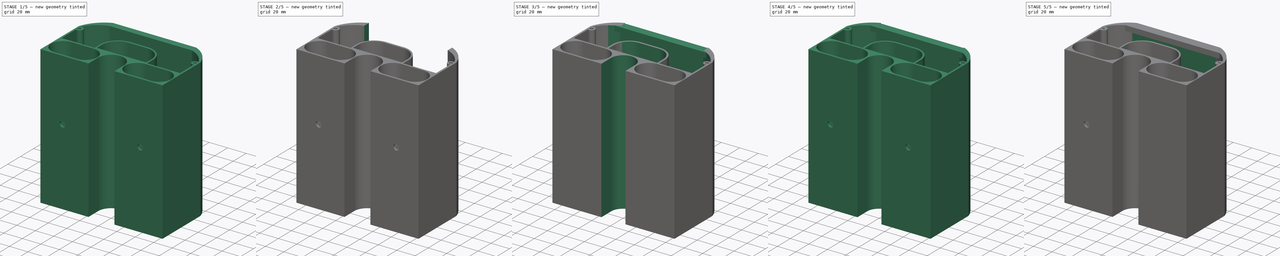
[diagram: build sequence overview — one tinted view per stage of 5, left to right]
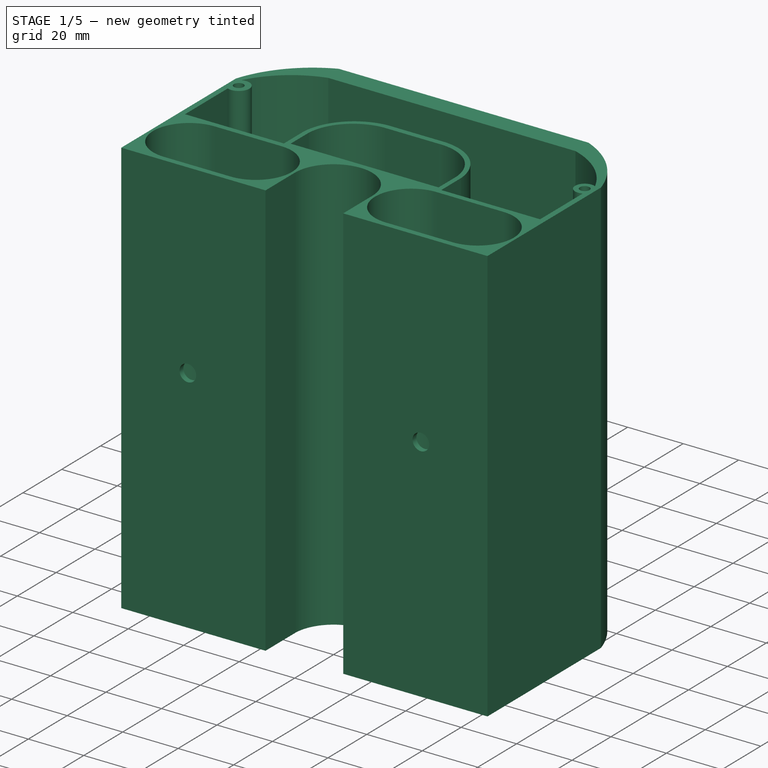
[diagram: stage 1 of 5 — iso view after this stage's code; geometry added in this stage tinted green]
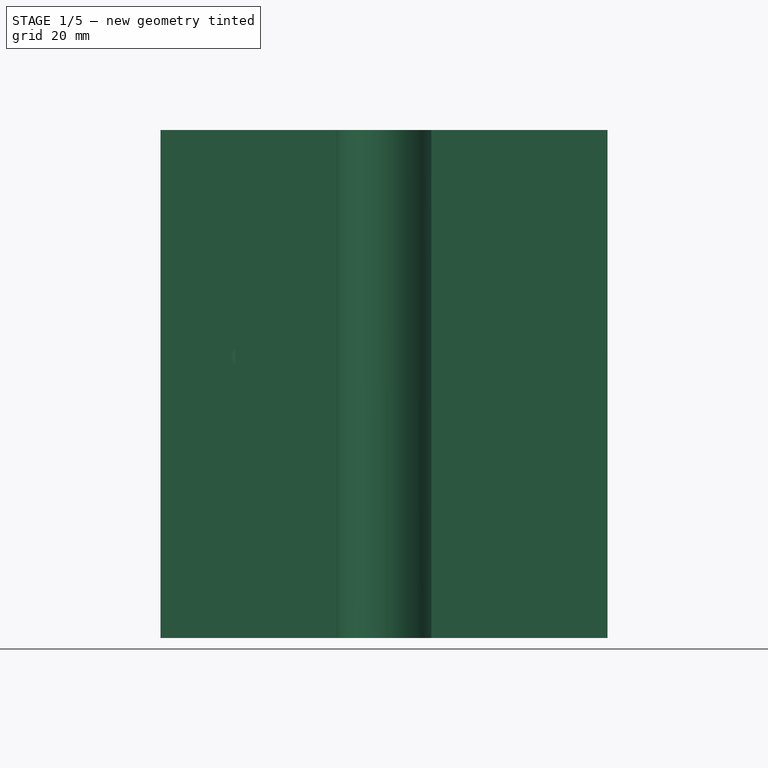
[diagram: stage 1 of 5 — front view after this stage's code; geometry added in this stage tinted green]
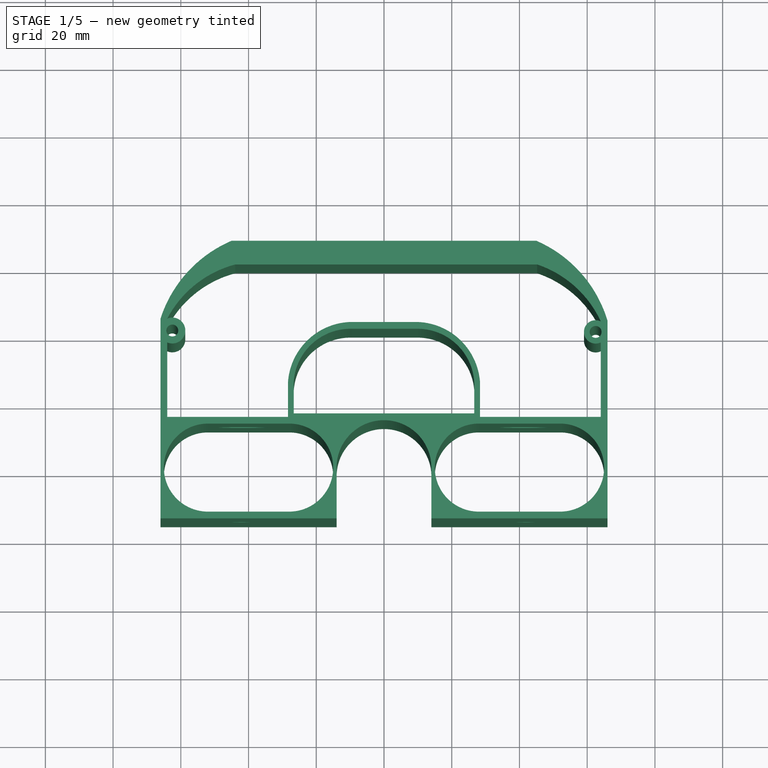
[diagram: stage 1 of 5 — top view after this stage's code; geometry added in this stage tinted green]
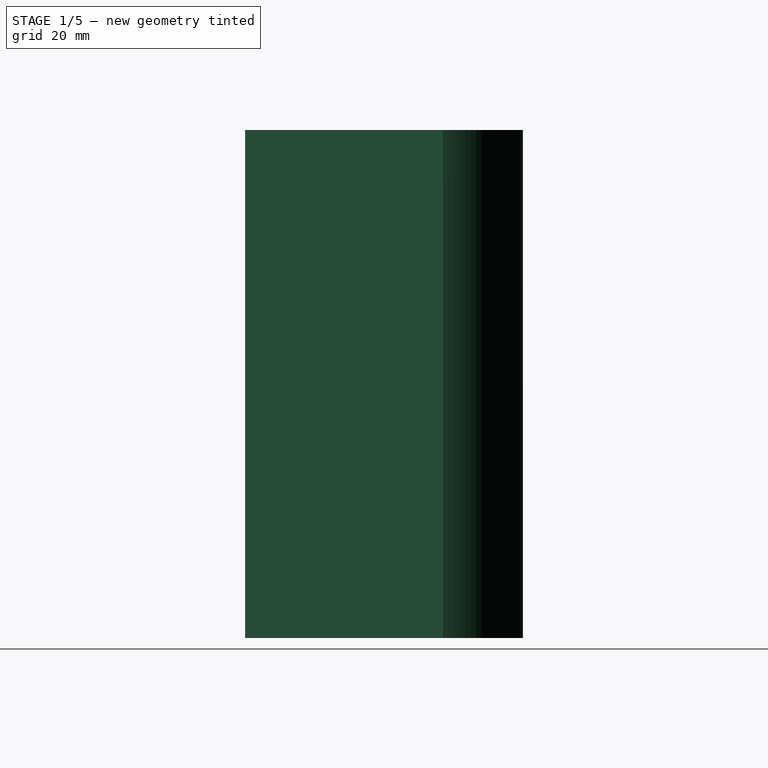
[diagram: stage 1 of 5 — right view after this stage's code; geometry added in this stage tinted green]
FCSTD DOCUMENT  (FreeCAD 0.15R4671 (Git))
Label: batteryHolder2
License: All rights reserved
LicenseURL: http://en.wikipedia.org/wiki/All_rights_reserved
objects: Sketcher::SketchObject×17, PartDesign::Pocket×10, PartDesign::Pad×7, PartDesign::Mirrored×6
note: 57 computed .brp shape members not serialized (recipe doc carries the construction recipe); baked Part::Feature solids carry a one-line shape summary decoded from their .brp

FEATURE [Sketcher::SketchObject] Sketch010
  sketch-geometry (62):
    g0: GeomPoint [constr] X=-14 Y=0 Z=0
    g1: GeomPoint [constr] X=14 Y=0 Z=0
    g2: ArcOfCircle CenterX=0 CenterY=0 CenterZ=0 NormalX=0 NormalY=0 NormalZ=1 Radius=14 StartAngle=0 EndAngle=3.14159
    g3: GeomPoint [constr] X=-15 Y=0 Z=0
    g4: GeomPoint [constr] X=15 Y=0 Z=0
    g5: ArcOfCircle CenterX=-28 CenterY=0 CenterZ=0 NormalX=0 NormalY=0 NormalZ=1 Radius=13 StartAngle=4.71239 EndAngle=7.85398
    g6: ArcOfCircle CenterX=-52 CenterY=0 CenterZ=0 NormalX=0 NormalY=0 NormalZ=1 Radius=13 StartAngle=1.5708 EndAngle=4.71239
    g7: LineSegment StartX=-28 StartY=13 StartZ=0 EndX=-52 EndY=13 EndZ=0
    g8: LineSegment StartX=-28 StartY=-13 StartZ=0 EndX=-52 EndY=-13 EndZ=0
    g9: ArcOfCircle CenterX=28 CenterY=0 CenterZ=0 NormalX=0 NormalY=0 NormalZ=1 Radius=13 StartAngle=1.5708 EndAngle=4.71239
    g10: ArcOfCircle CenterX=52 CenterY=0 CenterZ=0 NormalX=0 NormalY=0 NormalZ=1 Radius=13 StartAngle=4.71239 EndAngle=7.85398
    g11: LineSegment StartX=28 StartY=-13 StartZ=0 EndX=52 EndY=-13 EndZ=0
    g12: LineSegment StartX=28 StartY=13 StartZ=0 EndX=52 EndY=13 EndZ=0
    g13: GeomPoint [constr] X=-65 Y=0 Z=0
    g14: GeomPoint [constr] X=-66 Y=0 Z=0
    g15: GeomPoint [constr] X=65 Y=0 Z=0
    g16: GeomPoint [constr] X=66 Y=0 Z=0
    g17: LineSegment StartX=-66 StartY=0 StartZ=0 EndX=-66 EndY=-15 EndZ=0
    g18: LineSegment StartX=66 StartY=0 StartZ=0 EndX=66 EndY=-15 EndZ=0
    g19: GeomPoint [constr] X=0 Y=-15.1035 Z=0
    g20: LineSegment StartX=-14 StartY=0 StartZ=0 EndX=-14 EndY=-15 EndZ=0
    g21: LineSegment StartX=14 StartY=0 StartZ=0 EndX=14 EndY=-15 EndZ=0
    g22: LineSegment StartX=-66 StartY=-15 StartZ=0 EndX=-14 EndY=-15 EndZ=0
    g23: LineSegment StartX=14 StartY=-15 StartZ=0 EndX=66 EndY=-15 EndZ=0
    g24: LineSegment StartX=-66 StartY=0 StartZ=0 EndX=-66 EndY=44.0059 EndZ=0
    g25: LineSegment StartX=66 StartY=0 StartZ=0 EndX=66 EndY=43.414 EndZ=0
    g26: LineSegment StartX=0 StartY=67 StartZ=0 EndX=-45 EndY=67 EndZ=0
    g27: LineSegment StartX=0 StartY=67 StartZ=0 EndX=45 EndY=67 EndZ=0
    g28: ArcOfCircle CenterX=-30.2406 CenterY=32.4341 CenterZ=0 NormalX=0 NormalY=0 NormalZ=1 Radius=37.5851 StartAngle=1.97435 EndAngle=2.82863
    g29: ArcOfCircle CenterX=30.0264 CenterY=32.5264 CenterZ=0 NormalX=0 NormalY=0 NormalZ=1 Radius=37.5851 StartAngle=0.293891 EndAngle=1.16103
    g30: GeomPoint [constr] X=-0.000300225 Y=14 Z=0
    g31: GeomPoint [constr] X=0 Y=16 Z=0
    g32: GeomPoint [constr] X=0 Y=60 Z=0
    g33: LineSegment StartX=0 StartY=60 StartZ=0 EndX=-43.9211 EndY=60 EndZ=0
    g34: LineSegment StartX=0 StartY=60 StartZ=0 EndX=45.2308 EndY=60 EndZ=0
    g35: ArcOfCircle CenterX=-35.7495 CenterY=29.138 CenterZ=0 NormalX=0 NormalY=0 NormalZ=1 Radius=31.9255 StartAngle=1.82963 EndAngle=2.65705
    g36: ArcOfCircle CenterX=35.0585 CenterY=29.7385 CenterZ=0 NormalX=0 NormalY=0 NormalZ=1 Radius=31.9255 StartAngle=0.434849 EndAngle=1.24652
    g37: LineSegment StartX=-64.0003 StartY=14.9666 StartZ=0 EndX=-28.3637 EndY=14.9666 EndZ=0
    g38: GeomPoint [constr] X=-66 Y=15 Z=0
    g39: LineSegment StartX=0 StartY=16 StartZ=0 EndX=-26.6514 EndY=16 EndZ=0
    g40: GeomPoint [constr] X=0 Y=41 Z=0
    g41: LineSegment StartX=-26.6514 StartY=16 StartZ=0 EndX=-26.6514 EndY=25.364 EndZ=0
    g42: LineSegment StartX=0 StartY=41 StartZ=0 EndX=-9.36403 EndY=41 EndZ=0
    g43: ArcOfCircle CenterX=-9.89466 CenterY=24.2121 CenterZ=0 NormalX=0 NormalY=0 NormalZ=1 Radius=16.7962 StartAngle=1.5392 EndAngle=3.07296
    g44: LineSegment StartX=-28.3637 StartY=14.9666 StartZ=0 EndX=-28.3637 EndY=25.1243 EndZ=0
    g45: LineSegment StartX=0 StartY=43 StartZ=0 EndX=-10.1577 EndY=43 EndZ=0
    g46: ArcOfCircle CenterX=-9.26716 CenterY=23.8839 CenterZ=0 NormalX=0 NormalY=0 NormalZ=1 Radius=19.1368 StartAngle=1.61735 EndAngle=3.07673
    g47: LineSegment StartX=0 StartY=16 StartZ=0 EndX=26.6514 EndY=16 EndZ=0
    g48: LineSegment StartX=26.6514 StartY=16 StartZ=0 EndX=26.6514 EndY=25.364 EndZ=0
    g49: LineSegment StartX=0 StartY=41 StartZ=0 EndX=9.36403 EndY=41 EndZ=0
    g50: ArcOfCircle CenterX=9.89466 CenterY=24.2121 CenterZ=0 NormalX=0 NormalY=0 NormalZ=1 Radius=16.7962 StartAngle=0.0686344 EndAngle=1.60239
    g51: LineSegment StartX=0 StartY=43 StartZ=0 EndX=10.1577 EndY=43 EndZ=0
    g52: LineSegment StartX=64 StartY=14.9666 StartZ=0 EndX=28.3637 EndY=14.9666 EndZ=0
    g53: LineSegment StartX=28.3637 StartY=14.9666 StartZ=0 EndX=28.3637 EndY=25.1243 EndZ=0
    g54: ArcOfCircle CenterX=9.26716 CenterY=23.8839 CenterZ=0 NormalX=0 NormalY=0 NormalZ=1 Radius=19.1368 StartAngle=0.0648617 EndAngle=1.52425
    g55: GeomPoint [constr] X=64 Y=36.9627 Z=0
    g56: ArcOfCircle CenterX=62.5 CenterY=40.0784 CenterZ=0 NormalX=0 NormalY=0 NormalZ=1 Radius=3.45793 StartAngle=1.11799 EndAngle=5.16108
    g57: LineSegment StartX=64 StartY=36.9627 StartZ=0 EndX=64 EndY=14.9666 EndZ=0
    g58: Circle CenterX=62.5 CenterY=40.0784 CenterZ=0 NormalX=0 NormalY=0 NormalZ=1 Radius=1.75
    g59: LineSegment StartX=-64.0003 StartY=14.9666 StartZ=0 EndX=-64.0003 EndY=36.9627 EndZ=0
    g60: ArcOfCircle CenterX=-62.5 CenterY=40.4858 CenterZ=0 NormalX=0 NormalY=0 NormalZ=1 Radius=3.82922 StartAngle=4.30981 EndAngle=8.25649
    g61: Circle CenterX=-62.5 CenterY=40.4858 CenterZ=0 NormalX=0 NormalY=0 NormalZ=1 Radius=1.75
  constraints (154):
    c: PointOnObject(g0,g-1)
    c: Distance(g-1,g0) = 14
    c: PointOnObject(g1,g-1)
    c: Distance(g-1,g1) = 14
    c: Coincident(g2,g-1)
    c: Coincident(g2,g0)
    c: Coincident(g2,g1)
    c: PointOnObject(g3,g-1)
    c: PointOnObject(g4,g-1)
    c: Distance(g3,g0) = 1
    c: Distance(g1,g4) = 1
    c: Tangent(g5,g8) = 1.5708
    c: Tangent(g5,g7) = -1.5708
    c: Tangent(g7,g6) = -1.5708
    c: Tangent(g8,g6) = 1.5708
    c: Horizontal(g7)
    c: Equal(g5,g6)
    c: PointOnObject(g5,g-1)
    c: PointOnObject(g3,g5)
    c: Distance(g5,g5) = 26
    c: Distance(g7) = 24
    c: Tangent(g9,g12) = 1.5708
    c: Tangent(g9,g11) = -1.5708
    c: Tangent(g11,g10) = -1.5708
    c: Tangent(g12,g10) = 1.5708
    c: Horizontal(g11)
    c: Equal(g9,g10)
    c: PointOnObject(g9,g-1)
    c: Equal(g7,g12)
    c: PointOnObject(g4,g9)
    c: Distance(g9,g9) = 26
    c: PointOnObject(g13,g-1)
    c: PointOnObject(g13,g6)
    c: PointOnObject(g14,g-1)
    c: Distance(g13,g14) = 1
    c: PointOnObject(g15,g-1)
    c: PointOnObject(g15,g10)
    c: PointOnObject(g16,g-1)
    c: Distance(g15,g16) = 1
    c: Coincident(g17,g14)
    c: Vertical(g17)
    c: Coincident(g18,g16)
    c: Vertical(g18)
    c: PointOnObject(g19,g-2)
    c: Coincident(g20,g0)
    c: Vertical(g20)
    c: Coincident(g21,g1)
    c: Vertical(g21)
    c: Coincident(g22,g17)
    c: Coincident(g22,g20)
    c: Horizontal(g22)
    c: Coincident(g23,g21)
    c: Coincident(g23,g18)
    c: Horizontal(g23)
    c: Distance(g21) = 15
    c: Equal(g21,g20)
    c: Coincident(g24,g14)
    c: Vertical(g24)
    c: Coincident(g25,g16)
    c: Vertical(g25)
    c: PointOnObject(g26,g-2)
    c: Horizontal(g26)
    c: Distance(g26) = 45
    c: Coincident(g27,g26)
    c: Horizontal(g27)
    c: Equal(g27,g26)
    c: Coincident(g28,g26)
    c: Coincident(g28,g24)
    c: Coincident(g29,g27)
    c: Coincident(g29,g25)
    c: Equal(g29,g28)
    c: PointOnObject(g30,g2)
    c: PointOnObject(g31,g-2)
    c: Distance(g31,g30) = 2
    c: PointOnObject(g32,g-2)
    c: Coincident(g33,g32)
    c: Horizontal(g33)
    c: Coincident(g34,g32)
    c: Horizontal(g34)
    c: Coincident(g35,g33)
    c: Coincident(g36,g34)
    c: Horizontal(g37)
    c: Distance(g37,g5) = 2
    c: PointOnObject(g38,g24)
    c: Distance(g38,g14) = 15
    c: Distance(g38,g37) = 2
    c: Coincident(g39,g31)
    c: Horizontal(g39)
    c: Distance(g39,g37) = 2
    c: PointOnObject(g40,g-2)
    c: Distance(g40,g31) = 25
    c: Coincident(g41,g39)
    c: Vertical(g41)
    c: Coincident(g42,g40)
    c: Horizontal(g42)
    c: Coincident(g43,g42)
    c: Coincident(g43,g41)
    c: Equal(g42,g41)
    c: Coincident(g44,g37)
    c: Vertical(g44)
    c: PointOnObject(g45,g-2)
    c: Horizontal(g45)
    c: Coincident(g46,g45)
    c: Coincident(g46,g44)
    c: Distance(g45,g40) = 2
    c: Equal(g45,g44)
    c: Distance(g13,g37) = 15
    c: Coincident(g47,g31)
    c: Horizontal(g47)
    c: Equal(g47,g39)
    c: Coincident(g48,g47)
    c: Vertical(g48)
    c: Coincident(g49,g40)
    c: Horizontal(g49)
    c: Equal(g49,g48)
    c: Equal(g49,g41)
    c: Coincident(g50,g49)
    c: Coincident(g50,g48)
    c: Coincident(g51,g45)
    c: Horizontal(g51)
    c: Equal(g51,g45)
    c: Horizontal(g52)
    c: Distance(g52,g9) = 2
    c: Distance(g52,g47) = 2
    c: Coincident(g53,g52)
    c: Vertical(g53)
    c: Equal(g51,g53)
    c: Coincident(g54,g51)
    c: Coincident(g54,g53)
    c: Equal(g54,g46)
    c: Equal(g43,g50)
    c: Coincident(g56,g55)
    c: Coincident(g57,g55)
    c: Coincident(g57,g52)
    c: Vertical(g57)
    c: Coincident(g58,g56)
    c: Distance(g36,g25) = 2
    c: Coincident(g36,g56)
    c: Radius(g58) = 1.75
    c: Distance(g52,g25) = 2
    c: Distance(g26,g32) = 7
    c: Distance(g26,g40) = 26
    c: Coincident(g59,g37)
    c: Vertical(g59)
    c: Equal(g57,g59)
    c: Distance(g35,g24) = 2
    c: Equal(g59,g57)
    c: Equal(g36,g35)
    c: Coincident(g60,g35)
    c: Coincident(g60,g59)
    c: Coincident(g61,g60)
    c: Equal(g61,g58)
    c: Distance(g56,g25) = 3.5
    c: Distance(g60,g24) = 3.5
FEATURE [PartDesign::Pad] Pad003
  Length = 150
  Length2 = 100
  Sketch = -> Sketch010
  Type = 0
FEATURE [Sketcher::SketchObject] Sketch011
  Placement = pos=(0,-15,0) rot=(1,0,0;1.5708rad)
  Support = -> Pad003 [Face4]
  sketch-geometry (1):
    g0: Circle CenterX=-42 CenterY=83 CenterZ=0 NormalX=0 NormalY=0 NormalZ=1 Radius=3
  constraints (3):
    c: Radius(g0) = 3
    c: DistanceX(g-2,g0) = -42
    c: DistanceY(g-1,g0) = 83
FEATURE [PartDesign::Pocket] Pocket003
  Length = 5
  Sketch = -> Sketch011
  Type = 0
FEATURE [PartDesign::Mirrored] Mirrored004
  MirrorPlane = -> Sketch011 [V_Axis]
  Originals = -> [Pocket003]
FEATURE [Sketcher::SketchObject] Sketch012
  Placement = pos=(0,14.9666,0) rot=(0,0.707107,0.707107;3.14159rad)
  Support = -> Mirrored004 [Face31]
  sketch-geometry (1):
    g0: Circle CenterX=-41.5583 CenterY=82.8462 CenterZ=0 NormalX=0 NormalY=0 NormalZ=1 Radius=7.5
  constraints (1):
    c: Radius(g0) = 7.5
FEATURE [PartDesign::Pocket] Pocket004
  Length = 5
  Sketch = -> Sketch012
  Type = 0
FEATURE [PartDesign::Mirrored] Mirrored005
  MirrorPlane = -> Sketch012 [V_Axis]
  Originals = -> [Pocket004]
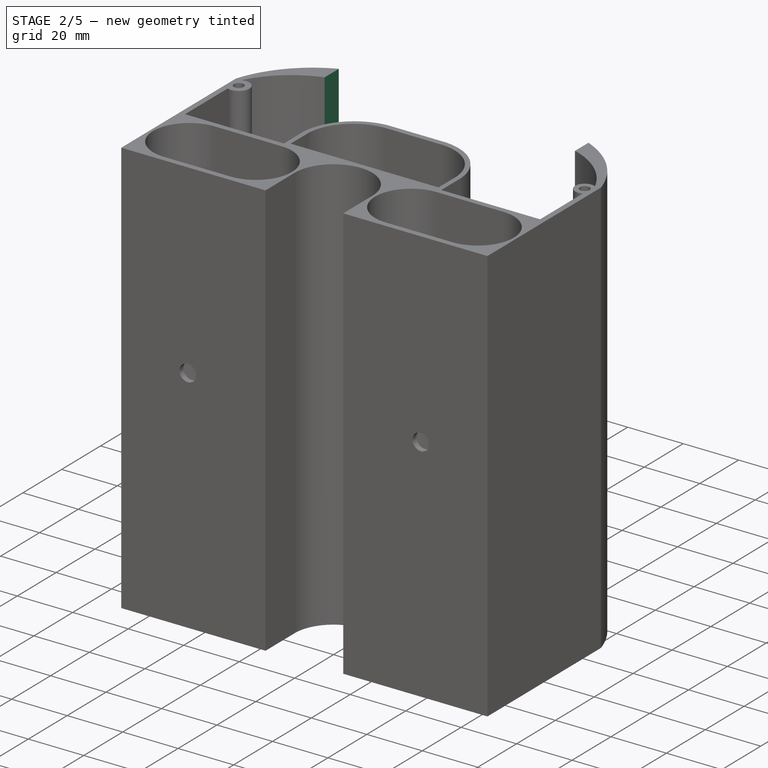
[diagram: stage 2 of 5 — iso view after this stage's code; geometry added in this stage tinted green]
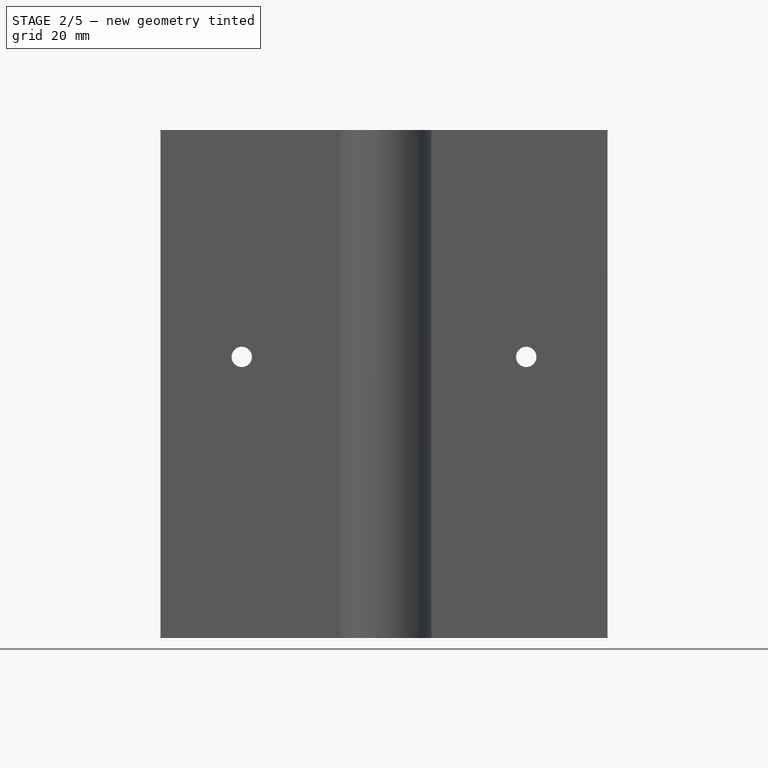
[diagram: stage 2 of 5 — front view after this stage's code; geometry added in this stage tinted green]
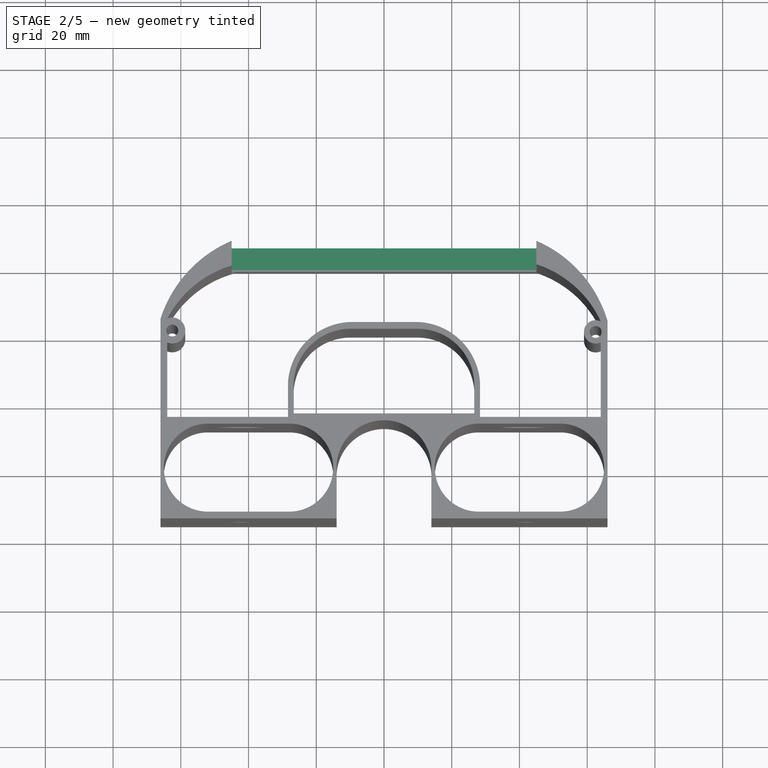
[diagram: stage 2 of 5 — top view after this stage's code; geometry added in this stage tinted green]
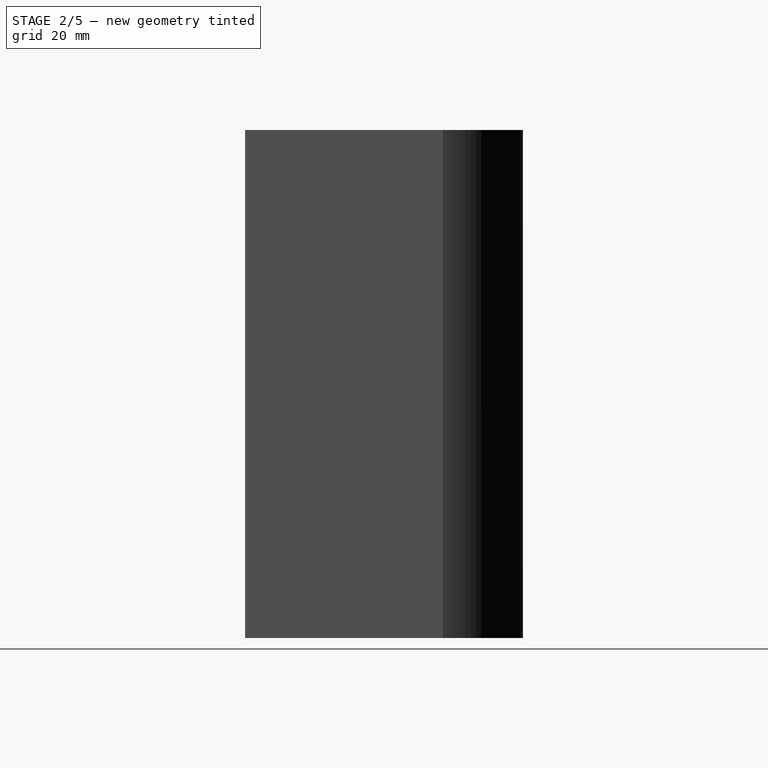
[diagram: stage 2 of 5 — right view after this stage's code; geometry added in this stage tinted green]
FEATURE [Sketcher::SketchObject] Sketch013
  Placement = pos=(0,67,0) rot=(0,0.707107,0.707107;3.14159rad)
  Support = -> Mirrored005 [Face14]
  sketch-geometry (6):
    g0: LineSegment StartX=45 StartY=20 StartZ=0 EndX=45 EndY=150 EndZ=0
    g1: LineSegment StartX=45 StartY=150 StartZ=0 EndX=-45 EndY=150 EndZ=0
    g2: LineSegment StartX=-45 StartY=150 StartZ=0 EndX=-45 EndY=20 EndZ=0
    g3: GeomPoint [constr] X=0 Y=20 Z=0
    g4: LineSegment StartX=0 StartY=20 StartZ=0 EndX=-45 EndY=20 EndZ=0
    g5: LineSegment StartX=0 StartY=20 StartZ=0 EndX=45 EndY=20 EndZ=0
  constraints (16):
    c: Coincident(g0,g1)
    c: Coincident(g1,g2)
    c: Horizontal(g1)
    c: Vertical(g0)
    c: Vertical(g2)
    c: PointOnObject(g3,g-2)
    c: Coincident(g4,g3)
    c: Coincident(g4,g2)
    c: Horizontal(g4)
    c: Coincident(g5,g3)
    c: Coincident(g5,g0)
    c: Horizontal(g5)
    c: Distance(g5) = 45
    c: Equal(g5,g4)
    c: Distance(g0) = 130
    c: Distance(g-1,g3) = 20
FEATURE [PartDesign::Pocket] Pocket005
  Length = 10
  Sketch = -> Sketch013
  Type = 0
FEATURE [Sketcher::SketchObject] Sketch014
  Placement = pos=(0,0,20) rot=(0,0,1;0rad)
  Support = -> Pocket005 [Face55]
  sketch-geometry (5):
    g0: LineSegment StartX=-45 StartY=60.5 StartZ=0 EndX=0 EndY=60.5 EndZ=0
    g1: LineSegment StartX=0 StartY=60.5 StartZ=0 EndX=45 EndY=60.5 EndZ=0
    g2: LineSegment StartX=-45 StartY=60.5 StartZ=0 EndX=-45 EndY=60 EndZ=0
    g3: LineSegment StartX=-45 StartY=60 StartZ=0 EndX=45 EndY=60 EndZ=0
    g4: LineSegment StartX=45 StartY=60.5 StartZ=0 EndX=45 EndY=60 EndZ=0
  constraints (14):
    c: PointOnObject(g0,g-2)
    c: Horizontal(g0)
    c: Coincident(g1,g0)
    c: Horizontal(g1)
    c: Coincident(g2,g0)
    c: Vertical(g2)
    c: Coincident(g3,g2)
    c: Horizontal(g3)
    c: Coincident(g4,g1)
    c: Vertical(g4)
    c: Coincident(g4,g3)
    c: Distance(g2) = 0.5
    c: Distance(g0) = 45
    c: Equal(g0,g1)
FEATURE [PartDesign::Pad] Pad004
  Length = 5
  Length2 = 100
  Sketch = -> Sketch014
  Type = 0
FEATURE [Sketcher::SketchObject] Sketch017
  Placement = pos=(45,0,0) rot=(0.57735,-0.57735,-0.57735;2.0944rad)
  Support = -> Pad004 [Face52]
  sketch-geometry (7):
    g0: GeomPoint [constr] X=-65.165 Y=150 Z=0
    g1: GeomPoint [constr] X=-65.165 Y=126 Z=0
    g2: GeomPoint [constr] X=-65.165 Y=123.75 Z=0
    g3: LineSegment StartX=-65.165 StartY=123.75 StartZ=0 EndX=-61.665 EndY=123.75 EndZ=0
    g4: LineSegment StartX=-61.665 StartY=123.75 StartZ=0 EndX=-61.665 EndY=103.75 EndZ=0
    g5: LineSegment StartX=-61.665 StartY=103.75 StartZ=0 EndX=-65.165 EndY=103.75 EndZ=0
    g6: LineSegment StartX=-65.165 StartY=103.75 StartZ=0 EndX=-65.165 EndY=123.75 EndZ=0
  constraints (14):
    c: DistanceY(g-1,g0) = 150
    c: Distance(g1,g0) = 24
    c: Distance(g2,g1) = 2.25
    c: Coincident(g3,g4)
    c: Coincident(g4,g5)
    c: Coincident(g5,g6)
    c: Coincident(g6,g3)
    c: Horizontal(g3)
    c: Horizontal(g5)
    c: Vertical(g4)
    c: Vertical(g6)
    c: Coincident(g3,g2)
    c: Distance(g3) = 3.5
    c: Distance(g4) = 20
FEATURE [PartDesign::Pocket] Pocket006
  Length = 3
  Sketch = -> Sketch017
  Type = 0
FEATURE [Sketcher::SketchObject] Sketch015
  Placement = pos=(-45,0,0) rot=(0.57735,0.57735,0.57735;2.0944rad)
  Support = -> Pocket006 [Face51]
  sketch-geometry (8):
    g0: GeomPoint [constr] X=65.7891 Y=20 Z=0
    g1: GeomPoint [constr] X=61.5601 Y=42.6079 Z=0
    g2: LineSegment StartX=61.5601 StartY=42.6079 StartZ=0 EndX=65.0601 EndY=42.6079 EndZ=0
    g3: LineSegment StartX=65.0601 StartY=42.6079 StartZ=0 EndX=65.0601 EndY=62.6079 EndZ=0
    g4: LineSegment StartX=65.0601 StartY=62.6079 StartZ=0 EndX=61.5601 EndY=62.6079 EndZ=0
    g5: LineSegment StartX=61.5601 StartY=62.6079 StartZ=0 EndX=61.5601 EndY=42.6079 EndZ=0
    g6: GeomPoint [constr] X=64.166 Y=44.3969 Z=0
    g7: GeomPoint [constr] X=60.9265 Y=40.4489 Z=0
  constraints (15):
    c: DistanceY(g-1,g0) = 20
    c: Distance(g1,g0) = 23
    c: Coincident(g2,g3)
    c: Coincident(g3,g4)
    c: Coincident(g4,g5)
    c: Coincident(g5,g2)
    c: Horizontal(g2)
    c: Horizontal(g4)
    c: Vertical(g3)
    c: Vertical(g5)
    c: Coincident(g2,g1)
    c: Distance(g2) = 3.5
    c: Distance(g5) = 20
    c: Distance(g6,g2) = 2
    c: Distance(g1,g7) = 2.25
FEATURE [PartDesign::Pocket] Pocket007
  Length = 3
  Sketch = -> Sketch015
  Type = 0
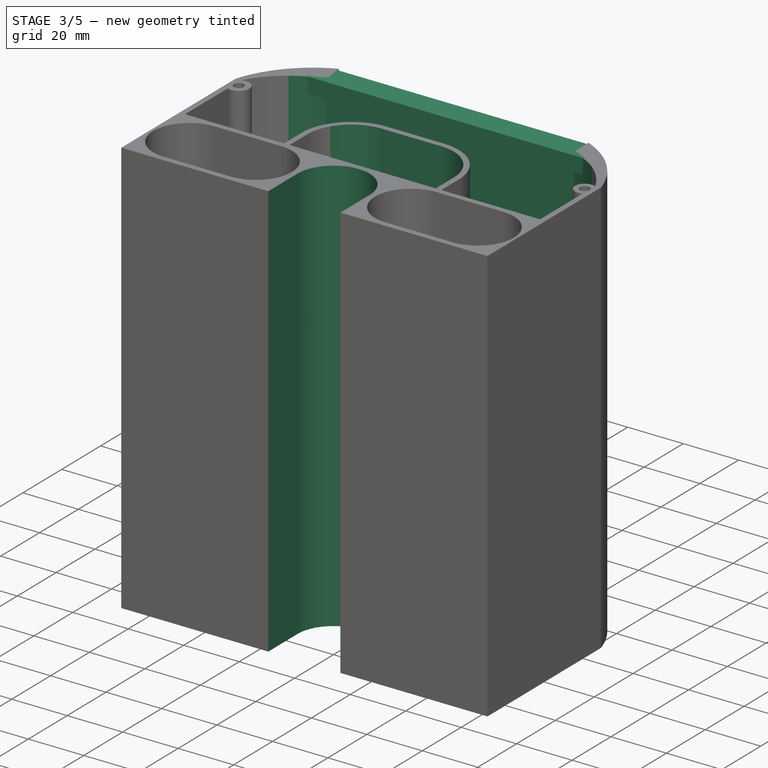
[diagram: stage 3 of 5 — iso view after this stage's code; geometry added in this stage tinted green]
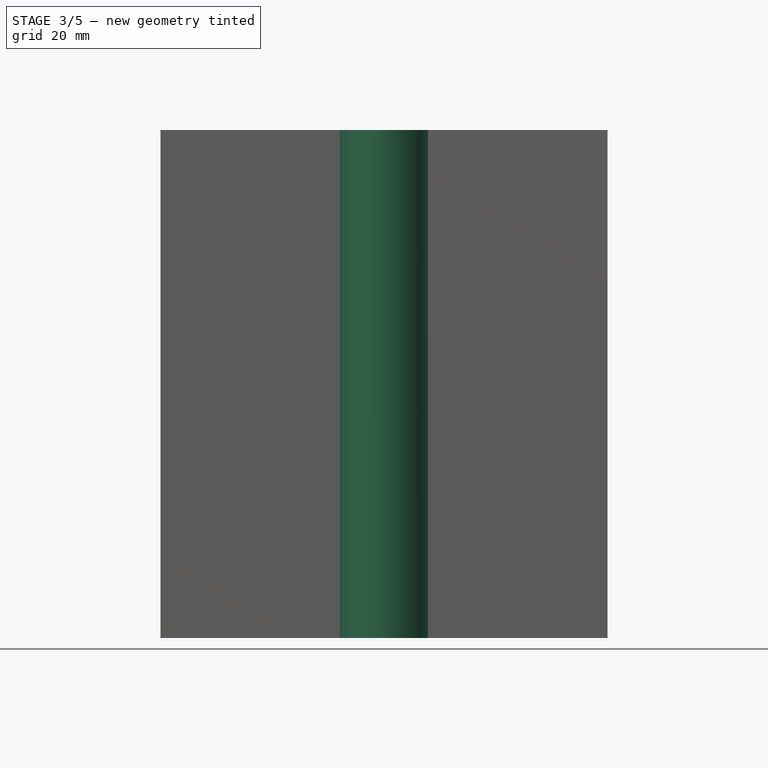
[diagram: stage 3 of 5 — front view after this stage's code; geometry added in this stage tinted green]
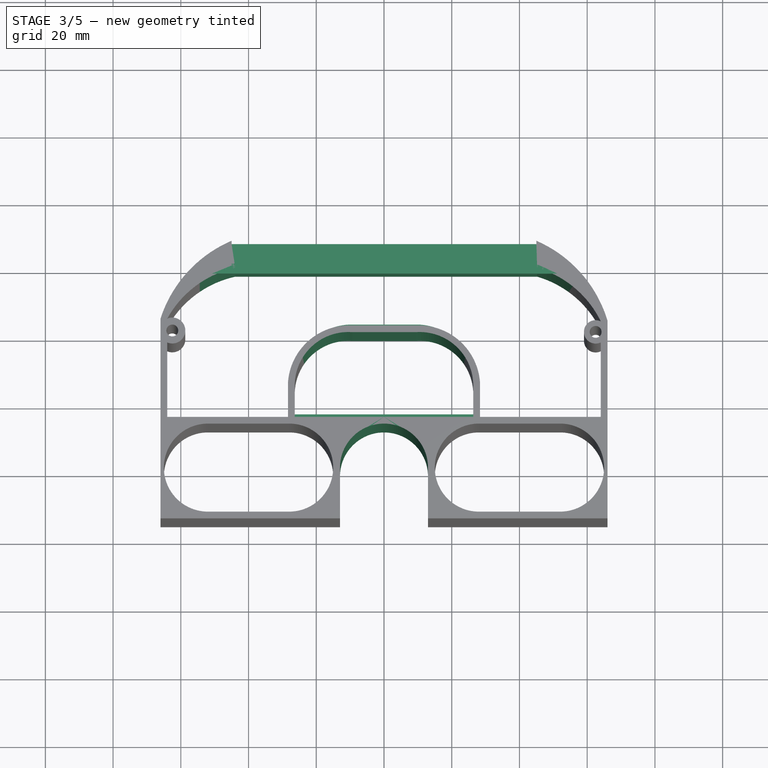
[diagram: stage 3 of 5 — top view after this stage's code; geometry added in this stage tinted green]
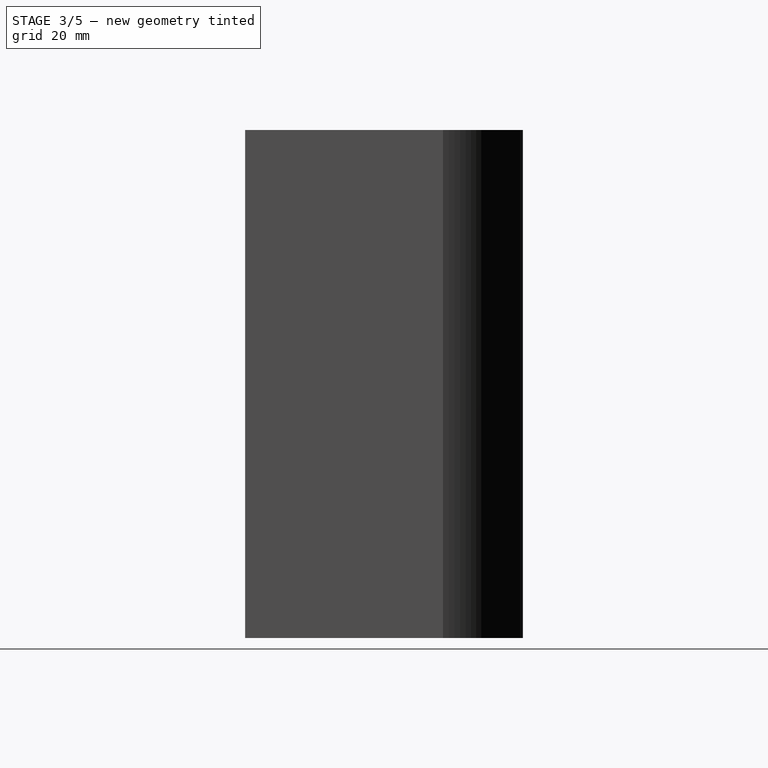
[diagram: stage 3 of 5 — right view after this stage's code; geometry added in this stage tinted green]
FEATURE [Sketcher::SketchObject] Sketch
  sketch-geometry (62):
    g0: GeomPoint [constr] X=-13 Y=0 Z=0
    g1: GeomPoint [constr] X=13 Y=0 Z=0
    g2: ArcOfCircle CenterX=0 CenterY=0 CenterZ=0 NormalX=0 NormalY=0 NormalZ=1 Radius=13 StartAngle=0 EndAngle=3.14159
    g3: GeomPoint [constr] X=-15 Y=0 Z=0
    g4: GeomPoint [constr] X=15 Y=0 Z=0
    g5: ArcOfCircle CenterX=-28 CenterY=0 CenterZ=0 NormalX=0 NormalY=0 NormalZ=1 Radius=13 StartAngle=4.71239 EndAngle=7.85398
    g6: ArcOfCircle CenterX=-52 CenterY=0 CenterZ=0 NormalX=0 NormalY=0 NormalZ=1 Radius=13 StartAngle=1.5708 EndAngle=4.71239
    g7: LineSegment StartX=-28 StartY=13 StartZ=0 EndX=-52 EndY=13 EndZ=0
    g8: LineSegment StartX=-28 StartY=-13 StartZ=0 EndX=-52 EndY=-13 EndZ=0
    g9: ArcOfCircle CenterX=28 CenterY=0 CenterZ=0 NormalX=0 NormalY=0 NormalZ=1 Radius=13 StartAngle=1.5708 EndAngle=4.71239
    g10: ArcOfCircle CenterX=52 CenterY=0 CenterZ=0 NormalX=0 NormalY=0 NormalZ=1 Radius=13 StartAngle=4.71239 EndAngle=7.85398
    g11: LineSegment StartX=28 StartY=-13 StartZ=0 EndX=52 EndY=-13 EndZ=0
    g12: LineSegment StartX=28 StartY=13 StartZ=0 EndX=52 EndY=13 EndZ=0
    g13: GeomPoint [constr] X=-65 Y=0 Z=0
    g14: GeomPoint [constr] X=-66 Y=0 Z=0
    g15: GeomPoint [constr] X=65 Y=0 Z=0
    g16: GeomPoint [constr] X=66 Y=0 Z=0
    g17: LineSegment StartX=-66 StartY=0 StartZ=0 EndX=-66 EndY=-15 EndZ=0
    g18: LineSegment StartX=66 StartY=0 StartZ=0 EndX=66 EndY=-15 EndZ=0
    g19: GeomPoint [constr] X=0 Y=-15.1035 Z=0
    g20: LineSegment StartX=-13 StartY=0 StartZ=0 EndX=-13 EndY=-15 EndZ=0
    g21: LineSegment StartX=13 StartY=0 StartZ=0 EndX=13 EndY=-15 EndZ=0
    g22: LineSegment StartX=-66 StartY=-15 StartZ=0 EndX=-13 EndY=-15 EndZ=0
    g23: LineSegment StartX=13 StartY=-15 StartZ=0 EndX=66 EndY=-15 EndZ=0
    g24: LineSegment StartX=-66 StartY=0 StartZ=0 EndX=-66 EndY=44.0059 EndZ=0
    g25: LineSegment StartX=66 StartY=0 StartZ=0 EndX=66 EndY=43.414 EndZ=0
    g26: LineSegment StartX=0 StartY=66 StartZ=0 EndX=-45 EndY=66 EndZ=0
    g27: LineSegment StartX=0 StartY=66 StartZ=0 EndX=45 EndY=66 EndZ=0
    g28: ArcOfCircle CenterX=-30.2501 CenterY=30.8943 CenterZ=0 NormalX=0 NormalY=0 NormalZ=1 Radius=38.0784 StartAngle=1.96856 EndAngle=2.79007
    g29: ArcOfCircle CenterX=30.0021 CenterY=30.9996 CenterZ=0 NormalX=0 NormalY=0 NormalZ=1 Radius=38.0784 StartAngle=0.332092 EndAngle=1.16596
    g30: GeomPoint [constr] X=-6.46636e-05 Y=13 Z=0
    g31: GeomPoint [constr] X=0 Y=15 Z=0
    g32: GeomPoint [constr] X=0 Y=59 Z=0
    g33: LineSegment StartX=0 StartY=59 StartZ=0 EndX=-43.9211 EndY=59 EndZ=0
    g34: LineSegment StartX=0 StartY=59 StartZ=0 EndX=45.2308 EndY=59 EndZ=0
    g35: ArcOfCircle CenterX=-37.4357 CenterY=29.3711 CenterZ=0 NormalX=0 NormalY=0 NormalZ=1 Radius=30.3304 StartAngle=1.78629 EndAngle=2.63795
    g36: ArcOfCircle CenterX=36.7595 CenterY=29.8767 CenterZ=0 NormalX=0 NormalY=0 NormalZ=1 Radius=30.3304 StartAngle=0.454342 EndAngle=1.28773
    g37: LineSegment StartX=-64.0003 StartY=14.9666 StartZ=0 EndX=-28.3637 EndY=14.9666 EndZ=0
    g38: GeomPoint [constr] X=-66 Y=15 Z=0
    g39: LineSegment StartX=0 StartY=15 StartZ=0 EndX=-26.364 EndY=15 EndZ=0
    g40: GeomPoint [constr] X=0 Y=40 Z=0
    g41: LineSegment StartX=-26.364 StartY=15 StartZ=0 EndX=-26.364 EndY=24.3643 EndZ=0
    g42: LineSegment StartX=0 StartY=40 StartZ=0 EndX=-9.36432 EndY=40 EndZ=0
    g43: ArcOfCircle CenterX=-10.5337 CenterY=24.2122 CenterZ=0 NormalX=0 NormalY=0 NormalZ=1 Radius=15.831 StartAngle=1.49686 EndAngle=3.13198
    g44: LineSegment StartX=-28.3637 StartY=14.9666 StartZ=0 EndX=-28.3637 EndY=24.9889 EndZ=0
    g45: LineSegment StartX=0 StartY=42 StartZ=0 EndX=-10.0222 EndY=42 EndZ=0
    g46: ArcOfCircle CenterX=-10.2841 CenterY=23.8888 CenterZ=0 NormalX=0 NormalY=0 NormalZ=1 Radius=18.1131 StartAngle=1.55634 EndAngle=3.08082
    g47: LineSegment StartX=0 StartY=15 StartZ=0 EndX=26.364 EndY=15 EndZ=0
    g48: LineSegment StartX=26.364 StartY=15 StartZ=0 EndX=26.364 EndY=24.3643 EndZ=0
    g49: LineSegment StartX=0 StartY=40 StartZ=0 EndX=9.36432 EndY=40 EndZ=0
    g50: ArcOfCircle CenterX=10.5337 CenterY=24.2122 CenterZ=0 NormalX=0 NormalY=0 NormalZ=1 Radius=15.831 StartAngle=0.00960774 EndAngle=1.64473
    g51: LineSegment StartX=0 StartY=42 StartZ=0 EndX=10.0222 EndY=42 EndZ=0
    g52: LineSegment StartX=64 StartY=14.9666 StartZ=0 EndX=28.3637 EndY=14.9666 EndZ=0
    g53: LineSegment StartX=28.3637 StartY=14.9666 StartZ=0 EndX=28.3637 EndY=24.9889 EndZ=0
    g54: ArcOfCircle CenterX=10.2841 CenterY=23.8888 CenterZ=0 NormalX=0 NormalY=0 NormalZ=1 Radius=18.1131 StartAngle=0.0607726 EndAngle=1.58525
    g55: GeomPoint [constr] X=64 Y=36.987 Z=0
    g56: ArcOfCircle CenterX=62.5 CenterY=40.0905 CenterZ=0 NormalX=0 NormalY=0 NormalZ=1 Radius=3.44701 StartAngle=1.11644 EndAngle=5.1626
    g57: LineSegment StartX=64 StartY=36.987 StartZ=0 EndX=64 EndY=14.9666 EndZ=0
    g58: Circle CenterX=62.5 CenterY=40.0905 CenterZ=0 NormalX=0 NormalY=0 NormalZ=1 Radius=1.75
    g59: LineSegment StartX=-64.0003 StartY=14.9666 StartZ=0 EndX=-64.0003 EndY=36.987 EndZ=0
    g60: ArcOfCircle CenterX=-62.5 CenterY=40.4979 CenterZ=0 NormalX=0 NormalY=0 NormalZ=1 Radius=3.81806 StartAngle=4.30856 EndAngle=8.25773
    g61: Circle CenterX=-62.5 CenterY=40.4979 CenterZ=0 NormalX=0 NormalY=0 NormalZ=1 Radius=1.75
  constraints (153):
    c: PointOnObject(g0,g-1)
    c: Distance(g-1,g0) = 13
    c: PointOnObject(g1,g-1)
    c: Coincident(g2,g-1)
    c: Coincident(g2,g0)
    c: Coincident(g2,g1)
    c: PointOnObject(g3,g-1)
    c: PointOnObject(g4,g-1)
    c: Distance(g3,g0) = 2
    c: Distance(g1,g4) = 2
    c: Tangent(g5,g8) = 1.5708
    c: Tangent(g5,g7) = -1.5708
    c: Tangent(g7,g6) = -1.5708
    c: Tangent(g8,g6) = 1.5708
    c: Horizontal(g7)
    c: Equal(g5,g6)
    c: PointOnObject(g5,g-1)
    c: PointOnObject(g3,g5)
    c: Distance(g5,g5) = 26
    c: Distance(g7) = 24
    c: Tangent(g9,g12) = 1.5708
    c: Tangent(g9,g11) = -1.5708
    c: Tangent(g11,g10) = -1.5708
    c: Tangent(g12,g10) = 1.5708
    c: Horizontal(g11)
    c: Equal(g9,g10)
    c: PointOnObject(g9,g-1)
    c: Equal(g7,g12)
    c: PointOnObject(g4,g9)
    c: Distance(g9,g9) = 26
    c: PointOnObject(g13,g-1)
    c: PointOnObject(g13,g6)
    c: PointOnObject(g14,g-1)
    c: Distance(g13,g14) = 1
    c: PointOnObject(g15,g-1)
    c: PointOnObject(g15,g10)
    c: PointOnObject(g16,g-1)
    c: Distance(g15,g16) = 1
    c: Coincident(g17,g14)
    c: Vertical(g17)
    c: Coincident(g18,g16)
    c: Vertical(g18)
    c: PointOnObject(g19,g-2)
    c: Coincident(g20,g0)
    c: Vertical(g20)
    c: Coincident(g21,g1)
    c: Vertical(g21)
    c: Coincident(g22,g17)
    c: Coincident(g22,g20)
    c: Horizontal(g22)
    c: Coincident(g23,g21)
    c: Coincident(g23,g18)
    c: Horizontal(g23)
    c: Distance(g21) = 15
    c: Equal(g21,g20)
    c: Coincident(g24,g14)
    c: Vertical(g24)
    c: Coincident(g25,g16)
    c: Vertical(g25)
    c: PointOnObject(g26,g-2)
    c: Horizontal(g26)
    c: Distance(g26) = 45
    c: Coincident(g27,g26)
    c: Horizontal(g27)
    c: Equal(g27,g26)
    c: Coincident(g28,g26)
    c: Coincident(g28,g24)
    c: Coincident(g29,g27)
    c: Coincident(g29,g25)
    c: Equal(g29,g28)
    c: PointOnObject(g30,g2)
    c: PointOnObject(g31,g-2)
    c: Distance(g31,g30) = 2
    c: PointOnObject(g32,g-2)
    c: Coincident(g33,g32)
    c: Horizontal(g33)
    c: Coincident(g34,g32)
    c: Horizontal(g34)
    c: Coincident(g35,g33)
    c: Coincident(g36,g34)
    c: Horizontal(g37)
    c: Distance(g37,g5) = 2
    c: PointOnObject(g38,g24)
    c: Distance(g38,g14) = 15
    c: Distance(g38,g37) = 2
    c: Coincident(g39,g31)
    c: Horizontal(g39)
    c: Distance(g39,g37) = 2
    c: PointOnObject(g40,g-2)
    c: Distance(g40,g31) = 25
    c: Coincident(g41,g39)
    c: Vertical(g41)
    c: Coincident(g42,g40)
    c: Horizontal(g42)
    c: Coincident(g43,g42)
    c: Coincident(g43,g41)
    c: Equal(g42,g41)
    c: Coincident(g44,g37)
    c: Vertical(g44)
    c: PointOnObject(g45,g-2)
    c: Horizontal(g45)
    c: Coincident(g46,g45)
    c: Coincident(g46,g44)
    c: Distance(g45,g40) = 2
    c: Equal(g45,g44)
    c: Distance(g13,g37) = 15
    c: Coincident(g47,g31)
    c: Horizontal(g47)
    c: Equal(g47,g39)
    c: Coincident(g48,g47)
    c: Vertical(g48)
    c: Coincident(g49,g40)
    c: Horizontal(g49)
    c: Equal(g49,g48)
    c: Equal(g49,g41)
    c: Coincident(g50,g49)
    c: Coincident(g50,g48)
    c: Coincident(g51,g45)
    c: Horizontal(g51)
    c: Equal(g51,g45)
    c: Horizontal(g52)
    c: Distance(g52,g9) = 2
    c: Distance(g52,g47) = 2
    c: Coincident(g53,g52)
    c: Vertical(g53)
    c: Equal(g51,g53)
    c: Coincident(g54,g51)
    c: Coincident(g54,g53)
    c: Equal(g54,g46)
    c: Equal(g43,g50)
    c: Coincident(g56,g55)
    c: Coincident(g57,g55)
    c: Coincident(g57,g52)
    c: Vertical(g57)
    c: Coincident(g58,g56)
    c: Distance(g36,g25) = 2
    c: Coincident(g36,g56)
    c: Radius(g58) = 1.75
    c: Distance(g52,g25) = 2
    c: Distance(g26,g32) = 7
    c: Distance(g26,g40) = 26
    c: Coincident(g59,g37)
    c: Vertical(g59)
    c: Equal(g57,g59)
    c: Distance(g35,g24) = 2
    c: Equal(g59,g57)
    c: Equal(g36,g35)
    c: Coincident(g60,g35)
    c: Coincident(g60,g59)
    c: Coincident(g61,g60)
    c: Equal(g61,g58)
    c: Distance(g56,g25) = 3.5
    c: Distance(g60,g24) = 3.5
FEATURE [PartDesign::Pad] Pad
  Length = 150
  Length2 = 100
  Sketch = -> Sketch
  Type = 0
FEATURE [Sketcher::SketchObject] Sketch016
  Placement = pos=(0,0,20) rot=(0,0,1;0rad)
  sketch-geometry (5):
    g0: LineSegment StartX=-45 StartY=67 StartZ=0 EndX=0 EndY=67 EndZ=0
    g1: LineSegment StartX=0 StartY=67 StartZ=0 EndX=45 EndY=67 EndZ=0
    g2: LineSegment StartX=-45 StartY=67 StartZ=0 EndX=-45 EndY=66.5 EndZ=0
    g3: LineSegment StartX=-45 StartY=66.5 StartZ=0 EndX=45 EndY=66.5 EndZ=0
    g4: LineSegment StartX=45 StartY=67 StartZ=0 EndX=45 EndY=66.5 EndZ=0
  constraints (14):
    c: PointOnObject(g0,g-2)
    c: Horizontal(g0)
    c: Coincident(g1,g0)
    c: Horizontal(g1)
    c: Coincident(g2,g0)
    c: Vertical(g2)
    c: Coincident(g3,g2)
    c: Horizontal(g3)
    c: Coincident(g4,g1)
    c: Vertical(g4)
    c: Coincident(g4,g3)
    c: Distance(g2) = 0.5
    c: Distance(g0) = 45
    c: Equal(g0,g1)
FEATURE [PartDesign::Pad] Pad005
  Length = 5
  Length2 = 100
  Placement = pos=(0,0,20) rot=(0,0,1;0rad)
  Sketch = -> Sketch016
  Type = 0
FEATURE [Sketcher::SketchObject] Sketch018
  Placement = pos=(0,0,150) rot=(0,0,1;0rad)
  Support = -> Pocket007 [Face5]
  sketch-geometry (6):
    g0: LineSegment StartX=0 StartY=0 StartZ=0 EndX=-26.6377 EndY=0 EndZ=0
    g1: LineSegment StartX=-26.6377 StartY=0 StartZ=0 EndX=-26.6377 EndY=25.1723 EndZ=0
    g2: LineSegment StartX=-26.6377 StartY=25.1723 StartZ=0 EndX=0.0136501 EndY=25.1723 EndZ=0
    g3: LineSegment StartX=0.0136501 StartY=25.1723 StartZ=0 EndX=26.6651 EndY=25.1723 EndZ=0
    g4: LineSegment StartX=0 StartY=0 StartZ=0 EndX=26.6651 EndY=0 EndZ=0
    g5: LineSegment StartX=26.6651 StartY=0 StartZ=0 EndX=26.6651 EndY=25.1723 EndZ=0
  constraints (15):
    c: Coincident(g0,g1)
    c: Coincident(g1,g2)
    c: Horizontal(g0)
    c: Horizontal(g2)
    c: Vertical(g1)
    c: Coincident(g0,g-1)
    c: Coincident(g3,g2)
    c: Horizontal(g3)
    c: Coincident(g4,g-1)
    c: PointOnObject(g4,g-1)
    c: Coincident(g5,g4)
    c: Coincident(g5,g3)
    c: Vertical(g5)
    c: Distance(g2) = 26.6514
    c: Equal(g2,g3)
FEATURE [PartDesign::Pocket] Pocket008
  Length = 15
  Sketch = -> Sketch018
  Type = 0
FEATURE [Sketcher::SketchObject] Sketch019
  Placement = pos=(0,43,0) rot=(0,0.707107,0.707107;3.14159rad)
  Support = -> Pocket008 [Face29]
  sketch-geometry (4):
    g0: LineSegment StartX=-31.2891 StartY=106.736 StartZ=0 EndX=31.8726 EndY=106.736 EndZ=0
    g1: LineSegment StartX=31.8726 StartY=106.736 StartZ=0 EndX=31.8726 EndY=151.736 EndZ=0
    g2: LineSegment StartX=31.8726 StartY=151.736 StartZ=0 EndX=-31.2891 EndY=151.736 EndZ=0
    g3: LineSegment StartX=-31.2891 StartY=151.736 StartZ=0 EndX=-31.2891 EndY=106.736 EndZ=0
  constraints (9):
    c: Coincident(g0,g1)
    c: Coincident(g1,g2)
    c: Coincident(g2,g3)
    c: Coincident(g3,g0)
    c: Horizontal(g0)
    c: Horizontal(g2)
    c: Vertical(g1)
    c: Vertical(g3)
    c: Distance(g3) = 45
FEATURE [PartDesign::Pocket] Pocket009
  Length = 27
  Sketch = -> Sketch019
  Type = 0
FEATURE [Sketcher::SketchObject] Sketch020
  Placement = pos=(-45,0,0) rot=(0.57735,0.57735,0.57735;2.0944rad)
  Support = -> Pocket009 [Face62]
  sketch-geometry (7):
    g0: GeomPoint [constr] X=59.7835 Y=150 Z=0
    g1: LineSegment StartX=59.7835 StartY=150 StartZ=0 EndX=60.2835 EndY=150 EndZ=0
    g2: LineSegment StartX=60.2835 StartY=150 StartZ=0 EndX=60.2835 EndY=144.426 EndZ=0
    g3: LineSegment StartX=60.2835 StartY=144.426 StartZ=0 EndX=59.6761 EndY=144.426 EndZ=0
    g4: LineSegment StartX=59.7835 StartY=150 StartZ=0 EndX=57.2835 EndY=150 EndZ=0
    g5: LineSegment StartX=57.2835 StartY=150 StartZ=0 EndX=57.2835 EndY=144.426 EndZ=0
    g6: LineSegment StartX=57.2835 StartY=144.426 StartZ=0 EndX=59.6761 EndY=144.426 EndZ=0
  constraints (16):
    c: Coincident(g1,g2)
    c: Coincident(g2,g3)
    c: Horizontal(g1)
    c: Horizontal(g3)
    c: Vertical(g2)
    c: Coincident(g1,g0)
    c: Distance(g1) = 0.5
    c: DistanceY(g-1,g0) = 150
    c: Coincident(g4,g0)
    c: Horizontal(g4)
    c: Coincident(g5,g4)
    c: Vertical(g5)
    c: Coincident(g6,g5)
    c: Coincident(g6,g3)
    c: Horizontal(g6)
    c: Distance(g4) = 2.5
FEATURE [PartDesign::Pad] Pad006
  Length = 97
  Length2 = 7
  Sketch = -> Sketch020
  Type = 4
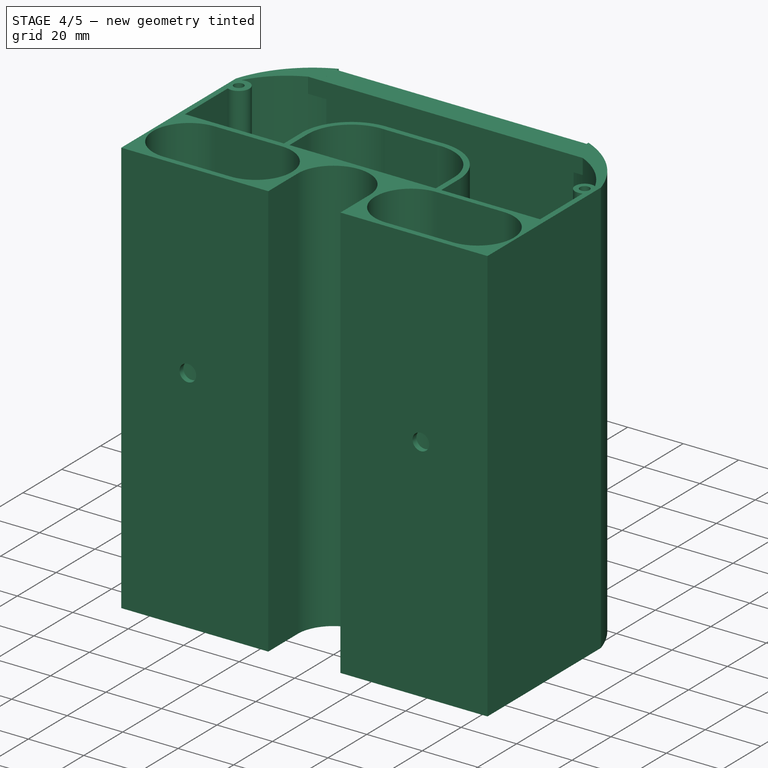
[diagram: stage 4 of 5 — iso view after this stage's code; geometry added in this stage tinted green]
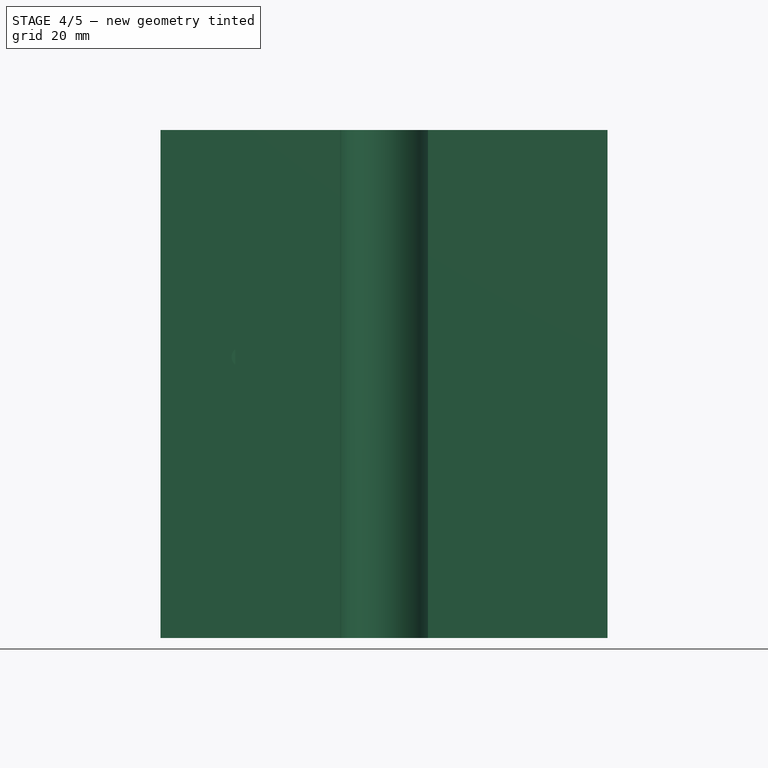
[diagram: stage 4 of 5 — front view after this stage's code; geometry added in this stage tinted green]
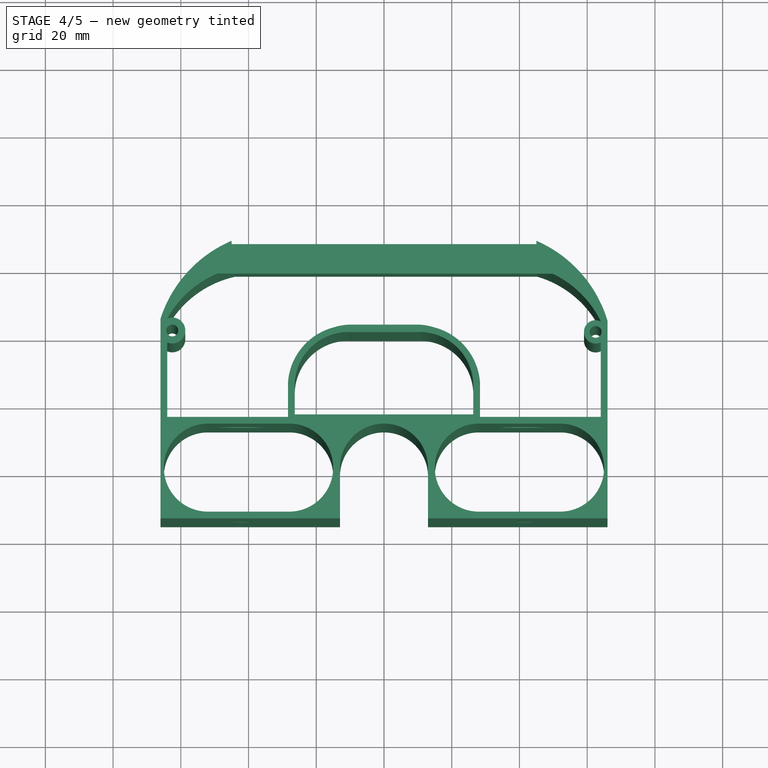
[diagram: stage 4 of 5 — top view after this stage's code; geometry added in this stage tinted green]
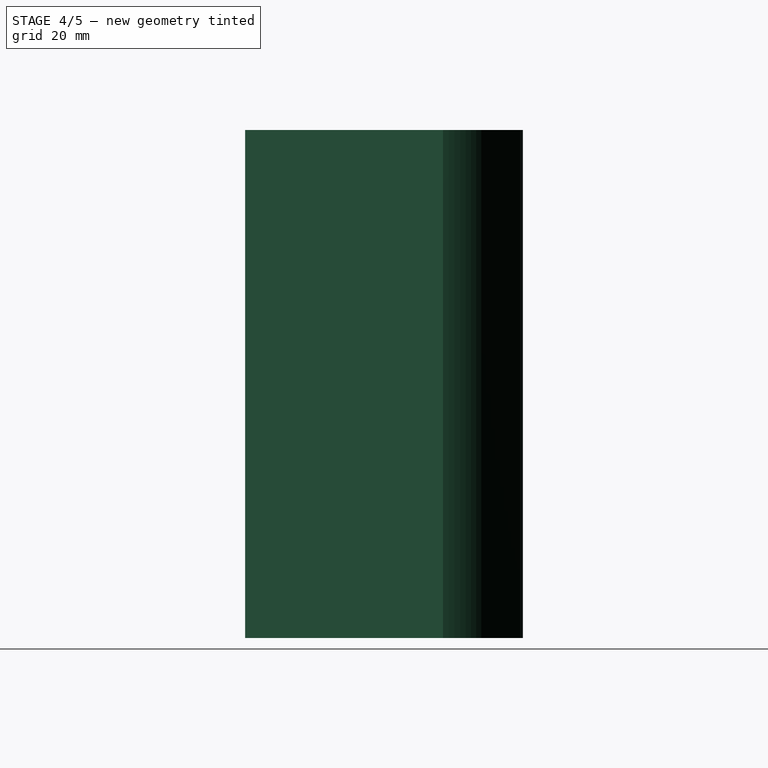
[diagram: stage 4 of 5 — right view after this stage's code; geometry added in this stage tinted green]
FEATURE [PartDesign::Pocket] Pocket
  Length = 5
  Sketch = -> Sketch006
  Type = 0
FEATURE [PartDesign::Mirrored] Mirrored002
  MirrorPlane = -> Sketch006 [V_Axis]
  Originals = -> [Pocket]
FEATURE [PartDesign::Pocket] Pocket001
  Length = 5
  Sketch = -> Sketch005
  Type = 0
FEATURE [PartDesign::Mirrored] Mirrored003
  MirrorPlane = -> Sketch005 [V_Axis]
  Originals = -> [Pocket001]
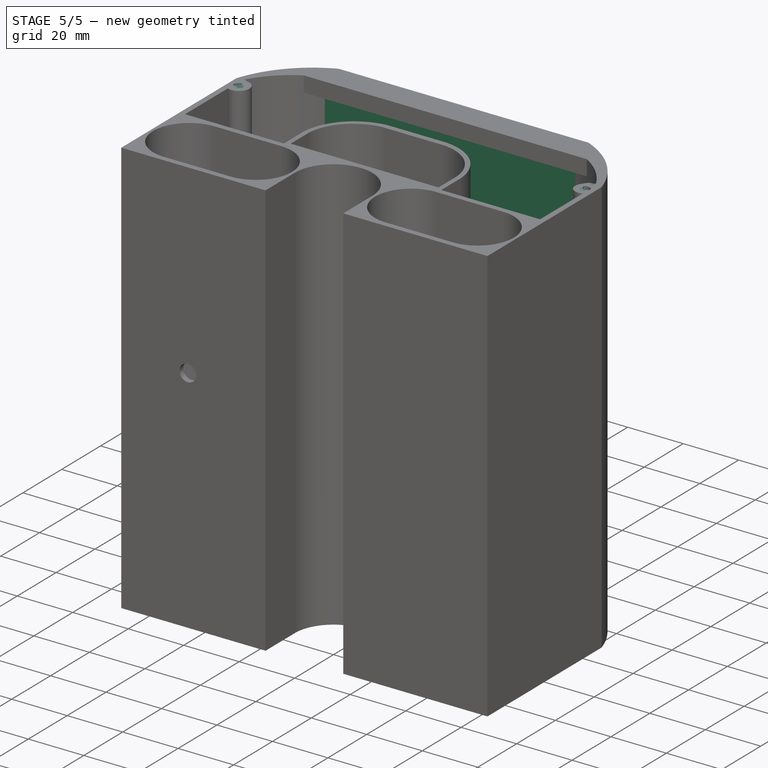
[diagram: stage 5 of 5 — iso view after this stage's code; geometry added in this stage tinted green]
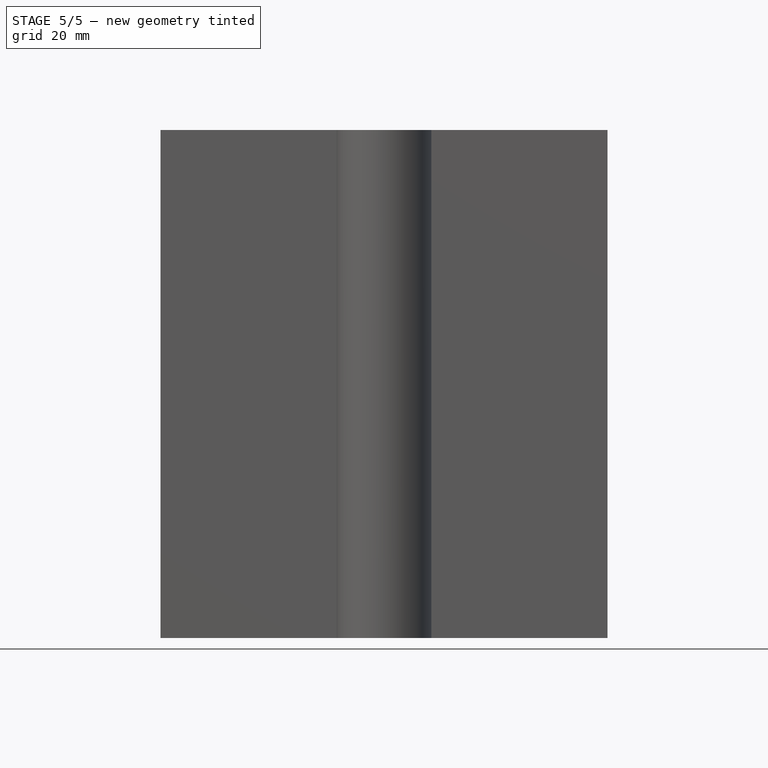
[diagram: stage 5 of 5 — front view after this stage's code; geometry added in this stage tinted green]
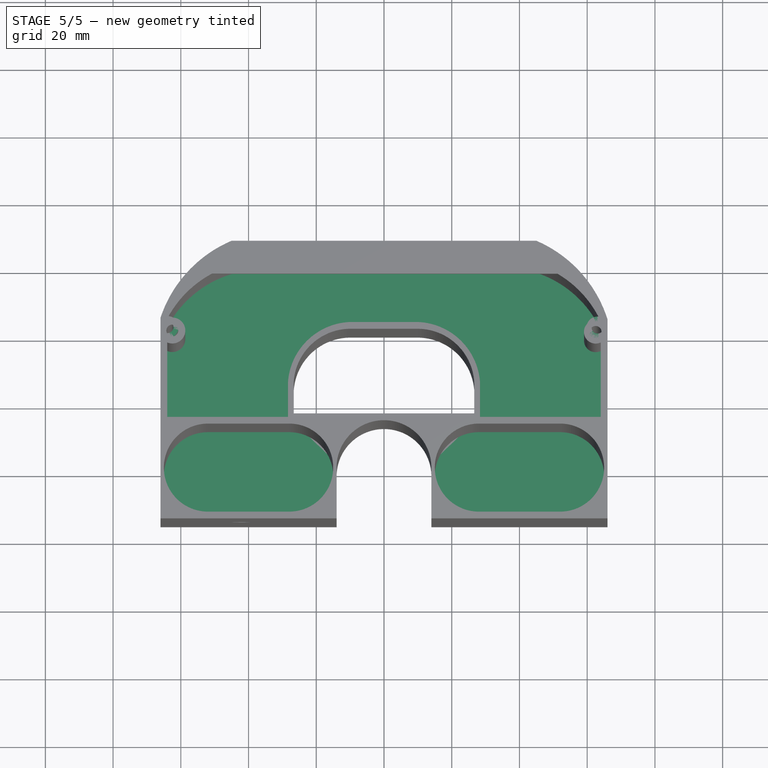
[diagram: stage 5 of 5 — top view after this stage's code; geometry added in this stage tinted green]
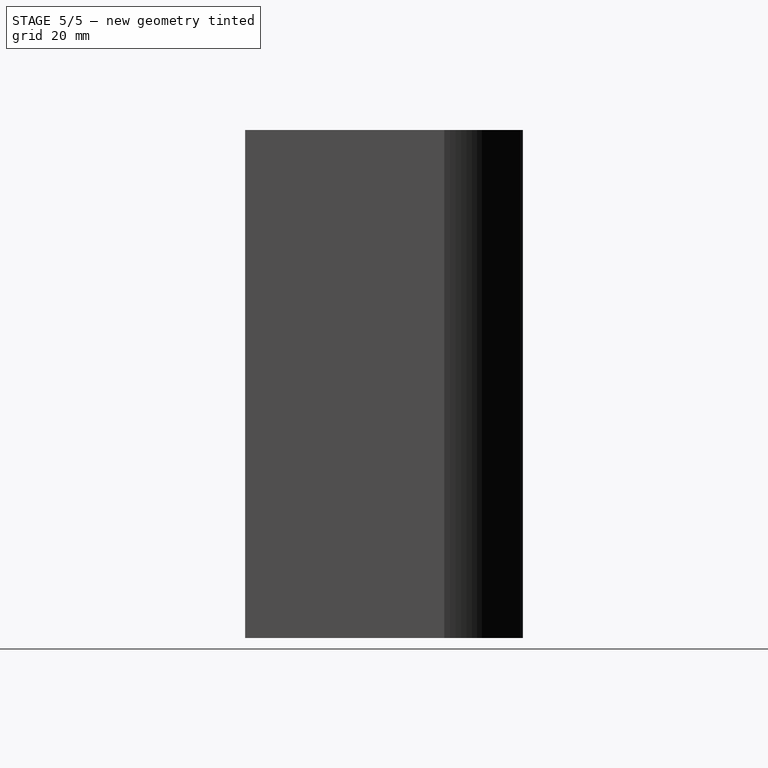
[diagram: stage 5 of 5 — right view after this stage's code; geometry added in this stage tinted green]
FEATURE [Sketcher::SketchObject] Sketch006
  Placement = pos=(0,-15,0) rot=(1,0,0;1.5708rad)
  Support = -> Pad [Face4]
  sketch-geometry (1):
    g0: Circle CenterX=-42 CenterY=83 CenterZ=0 NormalX=0 NormalY=0 NormalZ=1 Radius=3
  constraints (3):
    c: Radius(g0) = 3
    c: DistanceX(g-2,g0) = -42
    c: DistanceY(g-1,g0) = 83
FEATURE [PartDesign::Mirrored] Mirrored001
  MirrorPlane = -> Sketch006 [V_Axis]
FEATURE [Sketcher::SketchObject] Sketch005
  Placement = pos=(0,14.9666,0) rot=(0,0.707107,0.707107;3.14159rad)
  Support = -> Mirrored002 [Face31]
  sketch-geometry (1):
    g0: Circle CenterX=-41.5583 CenterY=82.8462 CenterZ=0 NormalX=0 NormalY=0 NormalZ=1 Radius=7.5
  constraints (1):
    c: Radius(g0) = 7.5
FEATURE [PartDesign::Mirrored] Mirrored
  MirrorPlane = -> Sketch005 [V_Axis]
FEATURE [Sketcher::SketchObject] Sketch007
  sketch-geometry (36):
    g0: GeomPoint [constr] X=-14 Y=-3e-12 Z=0
    g1: GeomPoint [constr] X=14 Y=0 Z=0
    g2: ArcOfCircle CenterX=0 CenterY=0 CenterZ=0 NormalX=0 NormalY=0 NormalZ=1 Radius=14 StartAngle=0 EndAngle=3.14159
    g3: GeomPoint [constr] X=-15 Y=0 Z=0
    g4: GeomPoint [constr] X=15 Y=0 Z=0
    g5: GeomPoint [constr] X=-65 Y=0 Z=0
    g6: GeomPoint [constr] X=-66 Y=0 Z=0
    g7: GeomPoint [constr] X=65 Y=0 Z=0
    g8: GeomPoint [constr] X=66 Y=0 Z=0
    g9: LineSegment StartX=-66 StartY=0 StartZ=0 EndX=-66 EndY=-15 EndZ=0
    g10: LineSegment StartX=66 StartY=0 StartZ=0 EndX=66 EndY=-15 EndZ=0
    g11: GeomPoint [constr] X=0 Y=-15.1035 Z=0
    g12: LineSegment StartX=-14 StartY=-3e-12 StartZ=0 EndX=-14 EndY=-15 EndZ=0
    g13: LineSegment StartX=14 StartY=0 StartZ=0 EndX=14 EndY=-15 EndZ=0
    g14: LineSegment StartX=-66 StartY=-15 StartZ=0 EndX=-14 EndY=-15 EndZ=0
    g15: LineSegment StartX=14 StartY=-15 StartZ=0 EndX=66 EndY=-15 EndZ=0
    g16: LineSegment StartX=-66 StartY=0 StartZ=0 EndX=-66 EndY=44.0059 EndZ=0
    g17: LineSegment StartX=66 StartY=0 StartZ=0 EndX=66 EndY=43.414 EndZ=0
    g18: LineSegment StartX=0 StartY=67 StartZ=0 EndX=-45 EndY=67 EndZ=0
    g19: LineSegment StartX=0 StartY=67 StartZ=0 EndX=45 EndY=67 EndZ=0
    g20: ArcOfCircle CenterX=-30.2406 CenterY=32.4341 CenterZ=0 NormalX=0 NormalY=0 NormalZ=1 Radius=37.5851 StartAngle=1.97435 EndAngle=2.82863
    g21: ArcOfCircle CenterX=30.0264 CenterY=32.5264 CenterZ=0 NormalX=0 NormalY=0 NormalZ=1 Radius=37.5851 StartAngle=0.293891 EndAngle=1.16103
    g22: GeomPoint [constr] X=-0.000300225 Y=14 Z=0
    g23: GeomPoint [constr] X=0 Y=16 Z=0
    g24: GeomPoint [constr] X=0 Y=60 Z=0
    g25: GeomPoint [constr] X=-66 Y=15 Z=0
    g26: LineSegment StartX=0 StartY=16 StartZ=0 EndX=-26.6514 EndY=16 EndZ=0
    g27: GeomPoint [constr] X=0 Y=41 Z=0
    g28: LineSegment StartX=-26.6514 StartY=16 StartZ=0 EndX=-26.6514 EndY=25.364 EndZ=0
    g29: LineSegment StartX=0 StartY=41 StartZ=0 EndX=-9.36403 EndY=41 EndZ=0
    g30: ArcOfCircle CenterX=-9.89466 CenterY=24.2121 CenterZ=0 NormalX=0 NormalY=0 NormalZ=1 Radius=16.7962 StartAngle=1.5392 EndAngle=3.07296
    g31: LineSegment StartX=0 StartY=16 StartZ=0 EndX=26.6514 EndY=16 EndZ=0
    g32: LineSegment StartX=26.6514 StartY=16 StartZ=0 EndX=26.6514 EndY=25.364 EndZ=0
    g33: LineSegment StartX=0 StartY=41 StartZ=0 EndX=9.36403 EndY=41 EndZ=0
    g34: ArcOfCircle CenterX=9.89466 CenterY=24.2121 CenterZ=0 NormalX=0 NormalY=0 NormalZ=1 Radius=16.7962 StartAngle=0.0686344 EndAngle=1.60239
    g35: GeomPoint [constr] X=64 Y=36.9627 Z=0
  constraints (80):
    c: PointOnObject(g0,g-1)
    c: Distance(g-1,g0) = 14
    c: PointOnObject(g1,g-1)
    c: Distance(g-1,g1) = 14
    c: Coincident(g2,g-1)
    c: Coincident(g2,g0)
    c: Coincident(g2,g1)
    c: PointOnObject(g3,g-1)
    c: PointOnObject(g4,g-1)
    c: Distance(g3,g0) = 1
    c: Distance(g1,g4) = 1
    c: PointOnObject(g5,g-1)
    c: PointOnObject(g6,g-1)
    c: Distance(g5,g6) = 1
    c: PointOnObject(g7,g-1)
    c: PointOnObject(g8,g-1)
    c: Distance(g7,g8) = 1
    c: Coincident(g9,g6)
    c: Vertical(g9)
    c: Coincident(g10,g8)
    c: Vertical(g10)
    c: PointOnObject(g11,g-2)
    c: Coincident(g12,g0)
    c: Vertical(g12)
    c: Coincident(g13,g1)
    c: Vertical(g13)
    c: Coincident(g14,g9)
    c: Coincident(g14,g12)
    c: Horizontal(g14)
    c: Coincident(g15,g13)
    c: Coincident(g15,g10)
    c: Horizontal(g15)
    c: Distance(g13) = 15
    c: Equal(g13,g12)
    c: Coincident(g16,g6)
    c: Vertical(g16)
    c: Coincident(g17,g8)
    c: Vertical(g17)
    c: PointOnObject(g18,g-2)
    c: Horizontal(g18)
    c: Distance(g18) = 45
    c: Coincident(g19,g18)
    c: Horizontal(g19)
    c: Equal(g19,g18)
    c: Coincident(g20,g18)
    c: Coincident(g20,g16)
    c: Coincident(g21,g19)
    c: Coincident(g21,g17)
    c: Equal(g21,g20)
    c: PointOnObject(g22,g2)
    c: PointOnObject(g23,g-2)
    c: Distance(g23,g22) = 2
    c: PointOnObject(g24,g-2)
    c: PointOnObject(g25,g16)
    c: Distance(g25,g6) = 15
    c: Coincident(g26,g23)
    c: Horizontal(g26)
    c: PointOnObject(g27,g-2)
    c: Distance(g27,g23) = 25
    c: Coincident(g28,g26)
    c: Vertical(g28)
    c: Coincident(g29,g27)
    c: Horizontal(g29)
    c: Coincident(g30,g29)
    c: Coincident(g30,g28)
    c: Equal(g29,g28)
    c: Coincident(g31,g23)
    c: Horizontal(g31)
    c: Equal(g31,g26)
    c: Coincident(g32,g31)
    c: Vertical(g32)
    c: Coincident(g33,g27)
    c: Horizontal(g33)
    c: Equal(g33,g32)
    c: Equal(g33,g28)
    c: Coincident(g34,g33)
    c: Coincident(g34,g32)
    c: Equal(g30,g34)
    c: Distance(g18,g24) = 7
    c: Distance(g18,g27) = 26
FEATURE [PartDesign::Pad] Pad001
  Length = 5
  Length2 = 100
  Sketch = -> Sketch007
  Type = 0
FEATURE [Sketcher::SketchObject] Sketch008
  Placement = pos=(0,66,0) rot=(0,0.707107,0.707107;3.14159rad)
  Support = -> Mirrored003 [Face14]
  sketch-geometry (6):
    g0: LineSegment StartX=45 StartY=20 StartZ=0 EndX=45 EndY=150 EndZ=0
    g1: LineSegment StartX=45 StartY=150 StartZ=0 EndX=-45 EndY=150 EndZ=0
    g2: LineSegment StartX=-45 StartY=150 StartZ=0 EndX=-45 EndY=20 EndZ=0
    g3: GeomPoint [constr] X=0 Y=20 Z=0
    g4: LineSegment StartX=0 StartY=20 StartZ=0 EndX=-45 EndY=20 EndZ=0
    g5: LineSegment StartX=0 StartY=20 StartZ=0 EndX=45 EndY=20 EndZ=0
  constraints (16):
    c: Coincident(g0,g1)
    c: Coincident(g1,g2)
    c: Horizontal(g1)
    c: Vertical(g0)
    c: Vertical(g2)
    c: PointOnObject(g3,g-2)
    c: Coincident(g4,g3)
    c: Coincident(g4,g2)
    c: Horizontal(g4)
    c: Coincident(g5,g3)
    c: Coincident(g5,g0)
    c: Horizontal(g5)
    c: Distance(g5) = 45
    c: Equal(g5,g4)
    c: Distance(g0) = 130
    c: Distance(g-1,g3) = 20
FEATURE [PartDesign::Pocket] Pocket002
  Length = 10
  Sketch = -> Sketch008
  Type = 0
FEATURE [Sketcher::SketchObject] Sketch009
  Placement = pos=(0,0,20) rot=(0,0,1;0rad)
  Support = -> Pocket002 [Face55]
  sketch-geometry (5):
    g0: LineSegment StartX=-45 StartY=66.9938 StartZ=0 EndX=0 EndY=66.9938 EndZ=0
    g1: LineSegment StartX=0 StartY=66.9938 StartZ=0 EndX=45 EndY=66.9938 EndZ=0
    g2: LineSegment StartX=-45 StartY=66.9938 StartZ=0 EndX=-45 EndY=66.4938 EndZ=0
    g3: LineSegment StartX=-45 StartY=66.4938 StartZ=0 EndX=45 EndY=66.4938 EndZ=0
    g4: LineSegment StartX=45 StartY=66.9938 StartZ=0 EndX=45 EndY=66.4938 EndZ=0
  constraints (14):
    c: PointOnObject(g0,g-2)
    c: Horizontal(g0)
    c: Coincident(g1,g0)
    c: Horizontal(g1)
    c: Coincident(g2,g0)
    c: Vertical(g2)
    c: Coincident(g3,g2)
    c: Horizontal(g3)
    c: Coincident(g4,g1)
    c: Vertical(g4)
    c: Coincident(g4,g3)
    c: Distance(g2) = 0.5
    c: Distance(g0) = 45
    c: Equal(g0,g1)
FEATURE [PartDesign::Pad] Pad002
  Length = 5
  Length2 = 100
  Sketch = -> Sketch009
  Type = 0
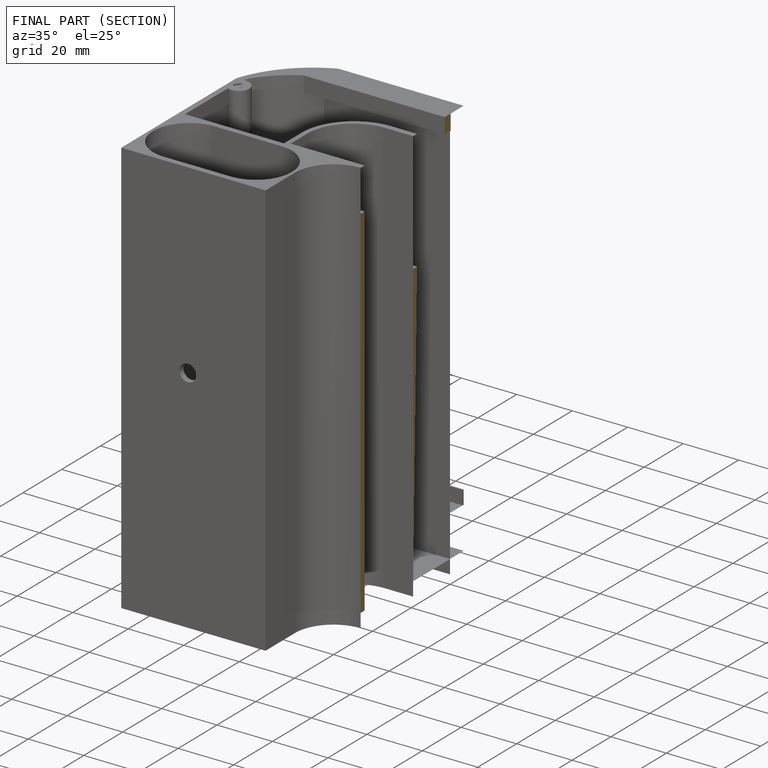
[diagram: finished part — half-section view (interior)]
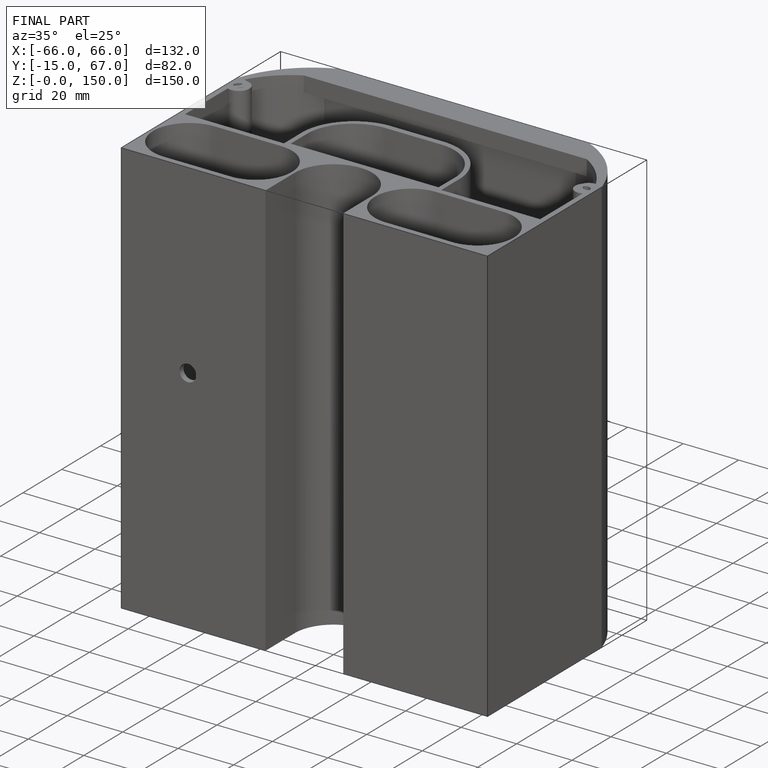
[diagram: finished part — iso view with bounding-box wireframe]
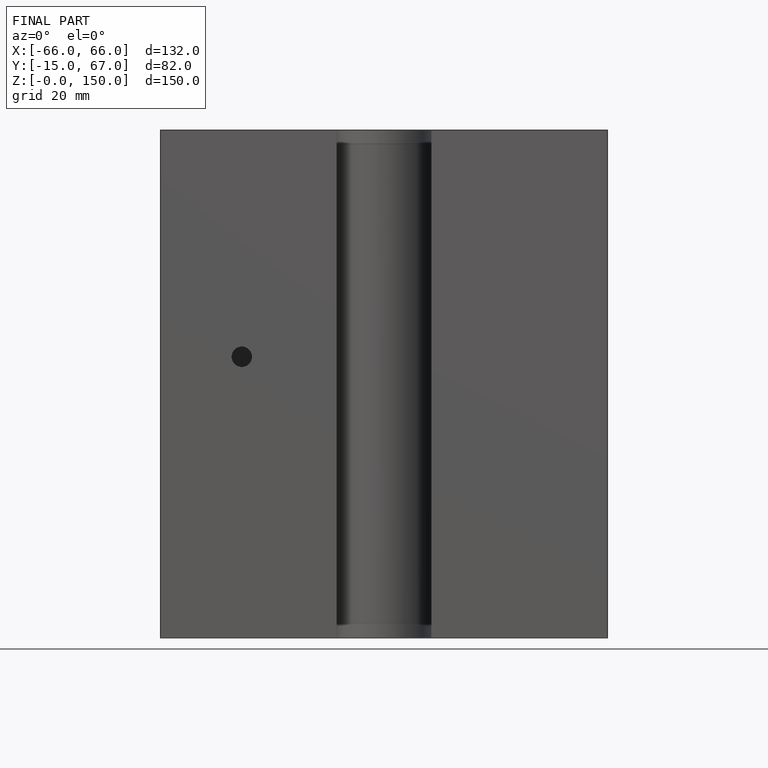
[diagram: finished part — front view with bounding-box wireframe]
